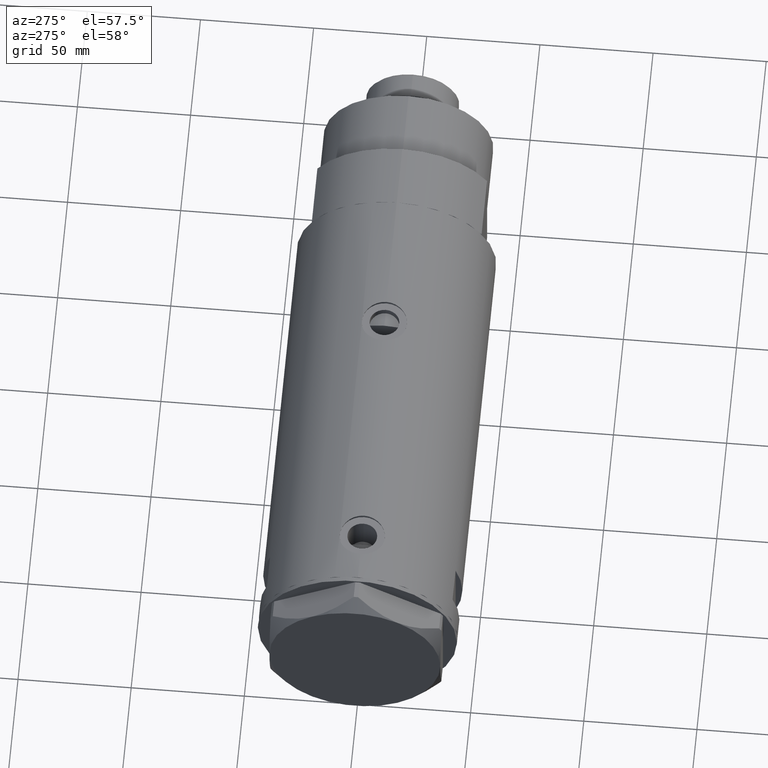
[diagram: clean part render]
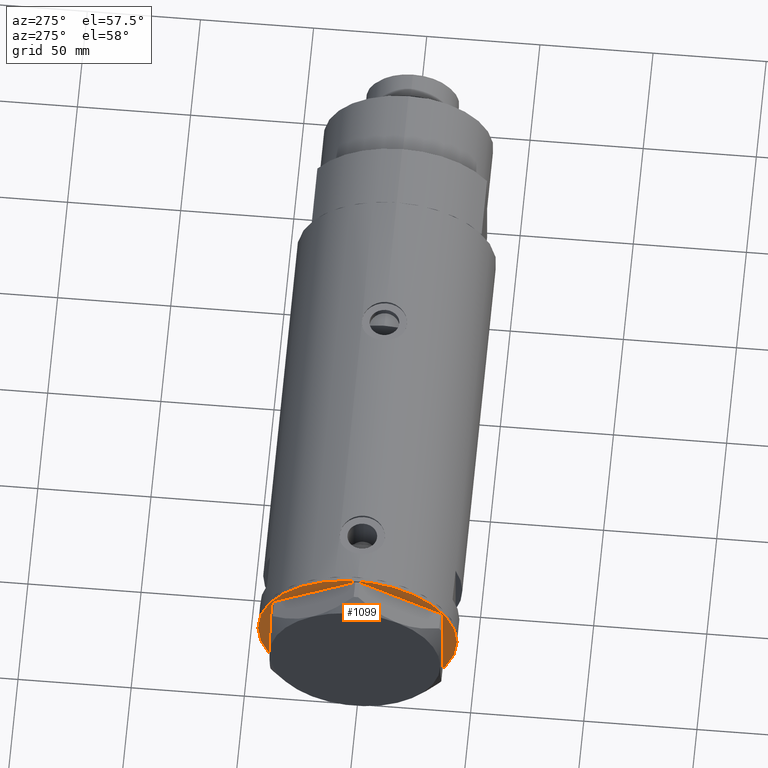
[diagram: same view with one face highlighted and labeled with its STEP entity id]
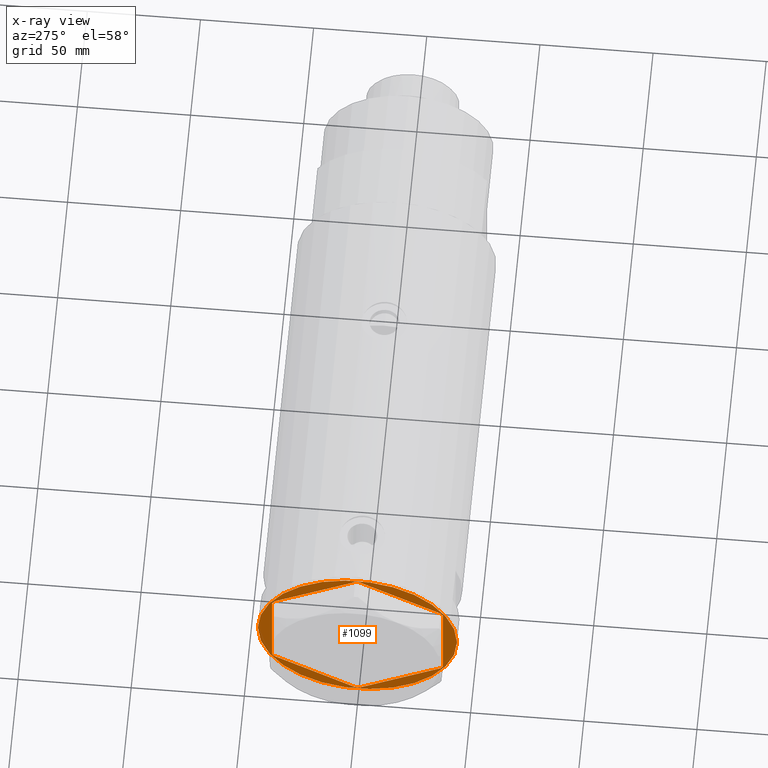
[diagram: x-ray of the same camera — body ghosted, the highlighted face saturated]
A machine part, auxiliary view. The second image highlights one B-rep face of the part: STEP entity #1099.
The next image is the same camera in x-ray: the body ghosted, the highlighted face saturated — about 0% of this face is hidden behind the body in this view.
In plain terms, the highlighted planar face has unit normal (1, 0, -0).
Its self-contained STEP definition (entity closure, byte-faithful):
#4 = DIRECTION ( 'NONE',  ( 0.000000000000000000, 0.000000000000000000, -1.000000000000000000 ) ) ;
#37 = CARTESIAN_POINT ( 'NONE',  ( -44.00000000000000000, 5.388445916248353619E-15, 0.000000000000000000 ) ) ;
#60 = LINE ( 'NONE', #716, #80 ) ;
#80 = VECTOR ( 'NONE', #389, 1000.000000000000000 ) ;
#85 = AXIS2_PLACEMENT_3D ( 'NONE', #4391, #2646, #3706 ) ;
#104 = EDGE_LOOP ( 'NONE', ( #2619, #2904, #2218, #1758, #1939, #2942, #4517, #2031, #3784, #834, #4383, #3237 ) ) ;
#132 = VERTEX_POINT ( 'NONE', #3999 ) ;
#215 = CARTESIAN_POINT ( 'NONE',  ( 37.75000000000002132, -20.67497266190835958, 0.000000000000000000 ) ) ;
#235 = VECTOR ( 'NONE', #696, 1000.000000000000000 ) ;
#360 = DIRECTION ( 'NONE',  ( 0.8660254037844385966, -0.4999999999999998890, 0.000000000000000000 ) ) ;
#361 = EDGE_CURVE ( 'NONE', #132, #876, #551, .T. ) ;
#389 = DIRECTION ( 'NONE',  ( 1.000000000000000000, -0.000000000000000000, -0.000000000000000000 ) ) ;
#502 = CARTESIAN_POINT ( 'NONE',  ( 36.78005154776143115, -22.35497266190837706, 0.000000000000000000 ) ) ;
#523 = PLANE ( 'NONE',  #85 ) ;
#546 = DIRECTION ( 'NONE',  ( 0.4999999999999978351, 0.8660254037844398178, -0.000000000000000000 ) ) ;
#551 = LINE ( 'NONE', #4439, #1043 ) ;
#577 = CARTESIAN_POINT ( 'NONE',  ( 0.9699484522385850571, 43.02994532381674020, 0.000000000000000000 ) ) ;
#623 = LINE ( 'NONE', #2355, #4203 ) ;
#696 = DIRECTION ( 'NONE',  ( -1.000000000000000000, -0.000000000000000000, -0.000000000000000000 ) ) ;
#716 = CARTESIAN_POINT ( 'NONE',  ( 0.000000000000000000, 43.02994532381674020, 0.000000000000000000 ) ) ;
#793 = VERTEX_POINT ( 'NONE', #2127 ) ;
#820 = CARTESIAN_POINT ( 'NONE',  ( 0.000000000000000000, 43.58994532381674247, 0.000000000000000000 ) ) ;
#834 = ORIENTED_EDGE ( 'NONE', *, *, #3684, .T. ) ;
#876 = VERTEX_POINT ( 'NONE', #3276 ) ;
#946 = DIRECTION ( 'NONE',  ( 0.8660254037844388186, 0.4999999999999997224, 0.000000000000000000 ) ) ;
#1007 = DIRECTION ( 'NONE',  ( -0.5000000000000002220, 0.8660254037844385966, -0.000000000000000000 ) ) ;
#1043 = VECTOR ( 'NONE', #1007, 999.9999999999998863 ) ;
#1070 = CARTESIAN_POINT ( 'NONE',  ( -0.9699484522385920515, -43.02994532381674020, 0.000000000000000000 ) ) ;
#1099 = ADVANCED_FACE ( 'NONE', ( #2287, #3672 ), #523, .F. ) ;
#1106 = DIRECTION ( 'NONE',  ( 0.4999999999999993894, -0.8660254037844390407, -0.000000000000000000 ) ) ;
#1116 = VECTOR ( 'NONE', #2549, 1000.000000000000000 ) ;
#1136 = DIRECTION ( 'NONE',  ( -1.000000000000000000, 0.000000000000000000, 0.000000000000000000 ) ) ;
#1189 = VECTOR ( 'NONE', #360, 1000.000000000000227 ) ;
#1393 = CARTESIAN_POINT ( 'NONE',  ( 44.00000000000000000, 0.000000000000000000, 0.000000000000000000 ) ) ;
#1451 = EDGE_CURVE ( 'NONE', #3814, #4366, #4093, .T. ) ;
#1474 = LINE ( 'NONE', #2871, #2446 ) ;
#1535 = CARTESIAN_POINT ( 'NONE',  ( 36.78005154776142405, 22.35497266190837706, 0.000000000000000000 ) ) ;
#1594 = ORIENTED_EDGE ( 'NONE', *, *, #3817, .F. ) ;
#1607 = VERTEX_POINT ( 'NONE', #1393 ) ;
#1659 = CARTESIAN_POINT ( 'NONE',  ( -0.9699484522385801721, 43.02994532381674020, 0.000000000000000000 ) ) ;
#1679 = DIRECTION ( 'NONE',  ( -0.8660254037844385966, 0.5000000000000000000, 0.000000000000000000 ) ) ;
#1699 = CARTESIAN_POINT ( 'NONE',  ( 37.75000000000000000, 21.79497266190837124, 0.000000000000000000 ) ) ;
#1758 = ORIENTED_EDGE ( 'NONE', *, *, #3577, .T. ) ;
#1773 = AXIS2_PLACEMENT_3D ( 'NONE', #3193, #4, #3527 ) ;
#1817 = LINE ( 'NONE', #3851, #4288 ) ;
#1925 = AXIS2_PLACEMENT_3D ( 'NONE', #2449, #2879, #1136 ) ;
#1939 = ORIENTED_EDGE ( 'NONE', *, *, #1451, .F. ) ;
#1953 = LINE ( 'NONE', #2713, #4343 ) ;
#2031 = ORIENTED_EDGE ( 'NONE', *, *, #361, .T. ) ;
#2104 = VERTEX_POINT ( 'NONE', #2570 ) ;
#2109 = CARTESIAN_POINT ( 'NONE',  ( 0.9699484522385760643, -43.02994532381674020, 0.000000000000000000 ) ) ;
#2127 = CARTESIAN_POINT ( 'NONE',  ( -37.75000000000000711, 20.67497266190837024, 0.000000000000000000 ) ) ;
#2188 = VERTEX_POINT ( 'NONE', #215 ) ;
#2218 = ORIENTED_EDGE ( 'NONE', *, *, #4547, .F. ) ;
#2287 = FACE_BOUND ( 'NONE', #104, .T. ) ;
#2355 = CARTESIAN_POINT ( 'NONE',  ( 37.75000000000002132, -21.79497266190837124, 0.000000000000000000 ) ) ;
#2446 = VECTOR ( 'NONE', #4266, 1000.000000000000227 ) ;
#2449 = CARTESIAN_POINT ( 'NONE',  ( 0.000000000000000000, 0.000000000000000000, 0.000000000000000000 ) ) ;
#2473 = CARTESIAN_POINT ( 'NONE',  ( 0.000000000000000000, -43.02994532381674020, 0.000000000000000000 ) ) ;
#2488 = CARTESIAN_POINT ( 'NONE',  ( -37.74999999999999289, -21.79497266190838189, 0.000000000000000000 ) ) ;
#2498 = VERTEX_POINT ( 'NONE', #1535 ) ;
#2506 = LINE ( 'NONE', #2488, #1189 ) ;
#2531 = VERTEX_POINT ( 'NONE', #4146 ) ;
#2549 = DIRECTION ( 'NONE',  ( -0.8660254037844387076, -0.4999999999999998890, 0.000000000000000000 ) ) ;
#2570 = CARTESIAN_POINT ( 'NONE',  ( 37.75000000000000000, 20.67497266190835958, 0.000000000000000000 ) ) ;
#2619 = ORIENTED_EDGE ( 'NONE', *, *, #4131, .F. ) ;
#2646 = DIRECTION ( 'NONE',  ( 0.000000000000000000, 0.000000000000000000, -1.000000000000000000 ) ) ;
#2713 = CARTESIAN_POINT ( 'NONE',  ( -37.26502577388077242, 21.51497266190828483, 0.000000000000000000 ) ) ;
#2750 = EDGE_LOOP ( 'NONE', ( #1594, #4170 ) ) ;
#2763 = EDGE_CURVE ( 'NONE', #793, #876, #1817, .T. ) ;
#2775 = VERTEX_POINT ( 'NONE', #1070 ) ;
#2871 = CARTESIAN_POINT ( 'NONE',  ( 37.26502577388077242, -21.51497266190830260, 0.000000000000000000 ) ) ;
#2879 = DIRECTION ( 'NONE',  ( 0.000000000000000000, 0.000000000000000000, -1.000000000000000000 ) ) ;
#2904 = ORIENTED_EDGE ( 'NONE', *, *, #3188, .T. ) ;
#2942 = ORIENTED_EDGE ( 'NONE', *, *, #4224, .T. ) ;
#3018 = VERTEX_POINT ( 'NONE', #577 ) ;
#3071 = CARTESIAN_POINT ( 'NONE',  ( -4.107234936485837051E-15, -43.58994532381674247, 0.000000000000000000 ) ) ;
#3088 = LINE ( 'NONE', #1699, #4425 ) ;
#3182 = EDGE_CURVE ( 'NONE', #132, #2775, #2506, .T. ) ;
#3188 = EDGE_CURVE ( 'NONE', #2498, #2104, #4176, .T. ) ;
#3193 = CARTESIAN_POINT ( 'NONE',  ( 0.000000000000000000, 0.000000000000000000, 0.000000000000000000 ) ) ;
#3237 = ORIENTED_EDGE ( 'NONE', *, *, #4245, .T. ) ;
#3238 = VERTEX_POINT ( 'NONE', #37 ) ;
#3276 = CARTESIAN_POINT ( 'NONE',  ( -37.74999999999999289, -20.67497266190837379, 0.000000000000000000 ) ) ;
#3447 = DIRECTION ( 'NONE',  ( -4.775569585389645902E-16, 1.000000000000000000, 0.000000000000000000 ) ) ;
#3480 = VECTOR ( 'NONE', #946, 1000.000000000000114 ) ;
#3527 = DIRECTION ( 'NONE',  ( -1.000000000000000000, 0.000000000000000000, 0.000000000000000000 ) ) ;
#3542 = LINE ( 'NONE', #2473, #235 ) ;
#3545 = EDGE_CURVE ( 'NONE', #4074, #2531, #3649, .T. ) ;
#3577 = EDGE_CURVE ( 'NONE', #2188, #4366, #1474, .T. ) ;
#3610 = CIRCLE ( 'NONE', #1773, 44.00000000000000000 ) ;
#3649 = LINE ( 'NONE', #820, #1116 ) ;
#3672 = FACE_OUTER_BOUND ( 'NONE', #2750, .T. ) ;
#3684 = EDGE_CURVE ( 'NONE', #793, #2531, #1953, .T. ) ;
#3706 = DIRECTION ( 'NONE',  ( -1.000000000000000000, 0.000000000000000000, -0.000000000000000000 ) ) ;
#3752 = VECTOR ( 'NONE', #1106, 999.9999999999998863 ) ;
#3784 = ORIENTED_EDGE ( 'NONE', *, *, #2763, .F. ) ;
#3814 = VERTEX_POINT ( 'NONE', #2109 ) ;
#3817 = EDGE_CURVE ( 'NONE', #1607, #3238, #3610, .T. ) ;
#3851 = CARTESIAN_POINT ( 'NONE',  ( -37.75000000000000711, 21.79497266190837124, 0.000000000000000000 ) ) ;
#3887 = CARTESIAN_POINT ( 'NONE',  ( 37.26502577388072979, 21.51497266190834523, 0.000000000000000000 ) ) ;
#3988 = CIRCLE ( 'NONE', #1925, 44.00000000000000000 ) ;
#3999 = CARTESIAN_POINT ( 'NONE',  ( -36.78005154776141694, -22.35497266190838772, 0.000000000000000000 ) ) ;
#4074 = VERTEX_POINT ( 'NONE', #1659 ) ;
#4093 = LINE ( 'NONE', #3071, #3480 ) ;
#4131 = EDGE_CURVE ( 'NONE', #2498, #3018, #3088, .T. ) ;
#4146 = CARTESIAN_POINT ( 'NONE',  ( -36.78005154776143826, 22.35497266190836996, 0.000000000000000000 ) ) ;
#4170 = ORIENTED_EDGE ( 'NONE', *, *, #4269, .F. ) ;
#4176 = LINE ( 'NONE', #3887, #3752 ) ;
#4183 = DIRECTION ( 'NONE',  ( 3.183713056926429451E-16, -1.000000000000000000, 0.000000000000000000 ) ) ;
#4203 = VECTOR ( 'NONE', #3447, 1000.000000000000000 ) ;
#4224 = EDGE_CURVE ( 'NONE', #3814, #2775, #3542, .T. ) ;
#4245 = EDGE_CURVE ( 'NONE', #4074, #3018, #60, .T. ) ;
#4266 = DIRECTION ( 'NONE',  ( -0.4999999999999981681, -0.8660254037844395958, -0.000000000000000000 ) ) ;
#4269 = EDGE_CURVE ( 'NONE', #3238, #1607, #3988, .T. ) ;
#4288 = VECTOR ( 'NONE', #4183, 1000.000000000000000 ) ;
#4343 = VECTOR ( 'NONE', #546, 1000.000000000000114 ) ;
#4366 = VERTEX_POINT ( 'NONE', #502 ) ;
#4383 = ORIENTED_EDGE ( 'NONE', *, *, #3545, .F. ) ;
#4391 = CARTESIAN_POINT ( 'NONE',  ( 0.000000000000000000, 0.000000000000000000, 0.000000000000000000 ) ) ;
#4425 = VECTOR ( 'NONE', #1679, 1000.000000000000227 ) ;
#4439 = CARTESIAN_POINT ( 'NONE',  ( -37.26502577388070847, -21.51497266190838076, 0.000000000000000000 ) ) ;
#4517 = ORIENTED_EDGE ( 'NONE', *, *, #3182, .F. ) ;
#4547 = EDGE_CURVE ( 'NONE', #2188, #2104, #623, .T. ) ;